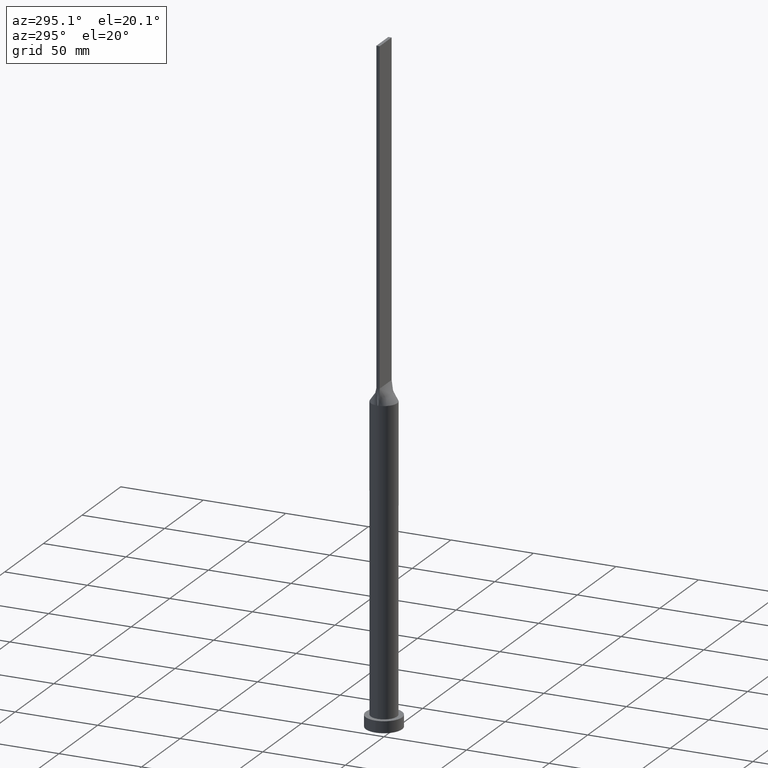
[diagram: clean part render]
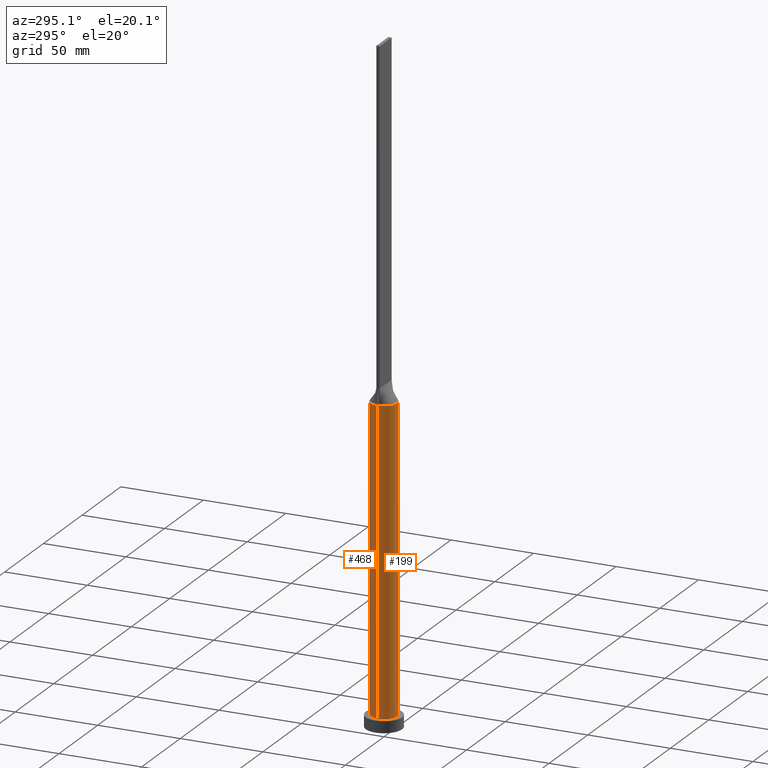
[diagram: same view with one multi-face feature highlighted, each face labeled with its STEP entity id]
A machine part, auxiliary view. The highlighted faces form ONE feature: a constant-radius fillet chain: 2 tangent blend faces with common blend radius 8 mm. The faces share edges in the B-rep.
Their STEP definitions:
[1] entity #468 (Cylinder):
#15 = VERTEX_POINT ( 'NONE', #75 ) ;
#17 = VERTEX_POINT ( 'NONE', #335 ) ;
#19 = VERTEX_POINT ( 'NONE', #417 ) ;
#37 = CARTESIAN_POINT ( 'NONE',  ( -0.5861720261543129640, 7.999999999999998224, 189.9999999999999432 ) ) ;
#38 = CYLINDRICAL_SURFACE ( 'NONE', #341, 8.000000000000000000 ) ;
#39 = DIRECTION ( 'NONE',  ( 0.000000000000000000, 0.000000000000000000, 1.000000000000000000 ) ) ;
#40 = CARTESIAN_POINT ( 'NONE',  ( 6.994548530637815453, 3.908833842696238570, 189.9999999999999716 ) ) ;
#75 = CARTESIAN_POINT ( 'NONE',  ( 8.000000000000000000, 9.797174393178825657E-16, 7.000000000000000000 ) ) ;
#87 = CARTESIAN_POINT ( 'NONE',  ( 7.849610172922079521, 1.679519592204998801, 190.0000000000000284 ) ) ;
#90 = CARTESIAN_POINT ( 'NONE',  ( -7.999864793045825984, 2.648518981350782698E-14, 190.0000000000000284 ) ) ;
#136 = CARTESIAN_POINT ( 'NONE',  ( 2.847317194822259534, 7.497028652483948008, 189.9999999999999716 ) ) ;
#139 = CARTESIAN_POINT ( 'NONE',  ( -6.226863775955933100, 5.046530946333157353, 190.0000000000000284 ) ) ;
#144 = CARTESIAN_POINT ( 'NONE',  ( -2.847317194822260422, 7.497028652483947120, 190.0000000000000284 ) ) ;
#160 = ORIENTED_EDGE ( 'NONE', *, *, #248, .F. ) ;
#189 = CARTESIAN_POINT ( 'NONE',  ( -3.862537548001455878, 7.028047916340264045, 190.0000000000000284 ) ) ;
#193 = VERTEX_POINT ( 'NONE', #235 ) ;
#194 = CARTESIAN_POINT ( 'NONE',  ( 6.226863775955932212, 5.046530946333158241, 190.0000000000000853 ) ) ;
#200 = CARTESIAN_POINT ( 'NONE',  ( 5.562660223239392465, 5.770452176164421410, 190.0000000000000284 ) ) ;
#204 = ORIENTED_EDGE ( 'NONE', *, *, #244, .F. ) ;
#218 = VERTEX_POINT ( 'NONE', #90 ) ;
#224 = EDGE_LOOP ( 'NONE', ( #463, #553, #564, #265, #204, #160 ) ) ;
#235 = CARTESIAN_POINT ( 'NONE',  ( -8.000000000000000000, 0.000000000000000000, 7.000000000000000000 ) ) ;
#237 = VECTOR ( 'NONE', #491, 1000.000000000000000 ) ;
#243 = CARTESIAN_POINT ( 'NONE',  ( 1.172177046651856624, 7.934824862069278950, 190.0000000000000284 ) ) ;
#244 = EDGE_CURVE ( 'NONE', #536, #218, #323, .T. ) ;
#246 = CARTESIAN_POINT ( 'NONE',  ( -7.849610172922081297, 1.679519592204999023, 189.9999999999999716 ) ) ;
#248 = EDGE_CURVE ( 'NONE', #19, #536, #567, .T. ) ;
#265 = ORIENTED_EDGE ( 'NONE', *, *, #390, .F. ) ;
#268 = DIRECTION ( 'NONE',  ( 1.000000000000000000, 0.000000000000000000, 0.000000000000000000 ) ) ;
#281 = CIRCLE ( 'NONE', #624, 8.000000000000000000 ) ;
#283 = LINE ( 'NONE', #470, #293 ) ;
#284 = CARTESIAN_POINT ( 'NONE',  ( -7.934264564332944580, 1.023776086464161406, 190.0000000000000000 ) ) ;
#292 = CARTESIAN_POINT ( 'NONE',  ( -5.562660223239390689, 5.770452176164420521, 190.0000000000000568 ) ) ;
#293 = VECTOR ( 'NONE', #331, 1000.000000000000000 ) ;
#296 = CARTESIAN_POINT ( 'NONE',  ( 6.511821874825409751, 4.668925682402791821, 190.0000000000000284 ) ) ;
#298 = CARTESIAN_POINT ( 'NONE',  ( -1.172177046651856402, 7.934824862069282503, 190.0000000000000568 ) ) ;
#301 = DIRECTION ( 'NONE',  ( -0.000000000000000000, -0.000000000000000000, -1.000000000000000000 ) ) ;
#302 = DIRECTION ( 'NONE',  ( 1.000000000000000000, 0.000000000000000000, 0.000000000000000000 ) ) ;
#314 = AXIS2_PLACEMENT_3D ( 'NONE', #632, #39, #302 ) ;
#323 = CIRCLE ( 'NONE', #314, 8.000000000000000000 ) ;
#331 = DIRECTION ( 'NONE',  ( -0.000000000000000000, -0.000000000000000000, -1.000000000000000000 ) ) ;
#335 = CARTESIAN_POINT ( 'NONE',  ( 7.999864793045824207, 2.000157186781041891E-15, 190.0000000000000000 ) ) ;
#337 = CARTESIAN_POINT ( 'NONE',  ( -4.333237558274722900, 6.745559271922134670, 190.0000000000000000 ) ) ;
#338 = CARTESIAN_POINT ( 'NONE',  ( 2.302877821226935406, 7.683241396761612663, 190.0000000000000284 ) ) ;
#341 = AXIS2_PLACEMENT_3D ( 'NONE', #641, #301, #394 ) ;
#342 = CARTESIAN_POINT ( 'NONE',  ( 7.934252830235720033, 1.023774570959714802, 190.0000000000000000 ) ) ;
#363 = LINE ( 'NONE', #442, #237 ) ;
#383 = CARTESIAN_POINT ( 'NONE',  ( 4.333237558274722900, 6.745559271922132893, 190.0000000000000284 ) ) ;
#390 = EDGE_CURVE ( 'NONE', #218, #193, #363, .T. ) ;
#393 = CARTESIAN_POINT ( 'NONE',  ( 5.183259239191615464, 6.116644610143058713, 190.0000000000000284 ) ) ;
#394 = DIRECTION ( 'NONE',  ( -1.000000000000000000, 0.000000000000000000, 0.000000000000000000 ) ) ;
#417 = CARTESIAN_POINT ( 'NONE',  ( 7.934252830235720033, 1.023774570959714802, 190.0000000000000000 ) ) ;
#420 = CARTESIAN_POINT ( 'NONE',  ( 0.000000000000000000, 0.000000000000000000, 190.0000000000000000 ) ) ;
#434 = CARTESIAN_POINT ( 'NONE',  ( -6.994548530637814565, 3.908833842696238570, 189.9999999999999716 ) ) ;
#439 = CARTESIAN_POINT ( 'NONE',  ( -7.934264564332944580, 1.023776086464161406, 190.0000000000000000 ) ) ;
#441 = CARTESIAN_POINT ( 'NONE',  ( 0.000000000000000000, 0.000000000000000000, 7.000000000000000000 ) ) ;
#442 = CARTESIAN_POINT ( 'NONE',  ( -8.000000000000000000, 0.000000000000000000, 190.0000000000000000 ) ) ;
#444 = FACE_OUTER_BOUND ( 'NONE', #224, .T. ) ;
#450 = EDGE_CURVE ( 'NONE', #15, #193, #524, .T. ) ;
#463 = ORIENTED_EDGE ( 'NONE', *, *, #570, .F. ) ;
#468 = ADVANCED_FACE ( 'NONE', ( #444 ), #38, .T. ) ;
#470 = CARTESIAN_POINT ( 'NONE',  ( 8.000000000000000000, 9.797174393178825657E-16, 190.0000000000000000 ) ) ;
#479 = CARTESIAN_POINT ( 'NONE',  ( -7.675166908885236339, 2.399868494543667907, 189.9999999999999432 ) ) ;
#481 = CARTESIAN_POINT ( 'NONE',  ( 7.192469010134847629, 3.526369025759696907, 189.9999999999999716 ) ) ;
#483 = CARTESIAN_POINT ( 'NONE',  ( -6.511821874825407974, 4.668925682402791821, 190.0000000000000284 ) ) ;
#491 = DIRECTION ( 'NONE',  ( -0.000000000000000000, -0.000000000000000000, -1.000000000000000000 ) ) ;
#508 = DIRECTION ( 'NONE',  ( 0.000000000000000000, 0.000000000000000000, 1.000000000000000000 ) ) ;
#521 = CARTESIAN_POINT ( 'NONE',  ( -7.192469010134845853, 3.526369025759696019, 189.9999999999999432 ) ) ;
#523 = CARTESIAN_POINT ( 'NONE',  ( -2.302877821226935851, 7.683241396761610886, 189.9999999999999716 ) ) ;
#524 = CIRCLE ( 'NONE', #611, 8.000000000000000000 ) ;
#529 = DIRECTION ( 'NONE',  ( 1.000000000000000000, 0.000000000000000000, 0.000000000000000000 ) ) ;
#536 = VERTEX_POINT ( 'NONE', #284 ) ;
#553 = ORIENTED_EDGE ( 'NONE', *, *, #597, .T. ) ;
#564 = ORIENTED_EDGE ( 'NONE', *, *, #450, .T. ) ;
#567 = B_SPLINE_CURVE_WITH_KNOTS ( 'NONE', 3,
 ( #342, #87, #621, #481, #40, #296, #194, #200, #393, #383, #577, #136, #338, #243, #580, #37, #298, #523, #144, #189, #337, #581, #292, #139, #483, #434, #521, #479, #246, #439 ),
 .UNSPECIFIED., .F., .F.,
 ( 4, 2, 2, 2, 2, 2, 2, 2, 2, 2, 2, 2, 2, 2, 4 ),
 ( 0.000000000000000000, 0.1250000000000000000, 0.1875000000000000000, 0.2500000000000000000, 0.3125000000000000000, 0.3750000000000000000, 0.4375000000000000000, 0.5000000000000000000, 0.5625000000000000000, 0.6250000000000000000, 0.6875000000000000000, 0.7500000000000000000, 0.8125000000000000000, 0.8750000000000000000, 1.000000000000000000 ),
 .UNSPECIFIED. ) ;
#570 = EDGE_CURVE ( 'NONE', #17, #19, #281, .T. ) ;
#577 = CARTESIAN_POINT ( 'NONE',  ( 3.862537548001455878, 7.028047916340264933, 190.0000000000000000 ) ) ;
#580 = CARTESIAN_POINT ( 'NONE',  ( 0.5861720261543130750, 7.999999999999998224, 190.0000000000000000 ) ) ;
#581 = CARTESIAN_POINT ( 'NONE',  ( -5.183259239191613688, 6.116644610143057825, 189.9999999999999716 ) ) ;
#597 = EDGE_CURVE ( 'NONE', #17, #15, #283, .T. ) ;
#611 = AXIS2_PLACEMENT_3D ( 'NONE', #441, #631, #529 ) ;
#621 = CARTESIAN_POINT ( 'NONE',  ( 7.675166908885234562, 2.399868494543665243, 189.9999999999998863 ) ) ;
#624 = AXIS2_PLACEMENT_3D ( 'NONE', #420, #508, #268 ) ;
#631 = DIRECTION ( 'NONE',  ( 0.000000000000000000, 0.000000000000000000, 1.000000000000000000 ) ) ;
#632 = CARTESIAN_POINT ( 'NONE',  ( 0.000000000000000000, 0.000000000000000000, 190.0000000000000000 ) ) ;
#641 = CARTESIAN_POINT ( 'NONE',  ( 0.000000000000000000, 0.000000000000000000, 190.0000000000000000 ) ) ;
[2] entity #199 (Cylinder):
#15 = VERTEX_POINT ( 'NONE', #75 ) ;
#17 = VERTEX_POINT ( 'NONE', #335 ) ;
#49 = ORIENTED_EDGE ( 'NONE', *, *, #378, .F. ) ;
#51 = DIRECTION ( 'NONE',  ( 0.000000000000000000, 0.000000000000000000, 1.000000000000000000 ) ) ;
#59 = ORIENTED_EDGE ( 'NONE', *, *, #277, .F. ) ;
#75 = CARTESIAN_POINT ( 'NONE',  ( 8.000000000000000000, 9.797174393178825657E-16, 7.000000000000000000 ) ) ;
#82 = EDGE_CURVE ( 'NONE', #218, #487, #633, .T. ) ;
#88 = CARTESIAN_POINT ( 'NONE',  ( 7.934268799922667981, -1.023776637617846319, 190.0000000000000000 ) ) ;
#90 = CARTESIAN_POINT ( 'NONE',  ( -7.999864793045825984, 2.648518981350782698E-14, 190.0000000000000284 ) ) ;
#145 = EDGE_LOOP ( 'NONE', ( #558, #49, #59, #176, #416, #593 ) ) ;
#176 = ORIENTED_EDGE ( 'NONE', *, *, #82, .F. ) ;
#191 = CARTESIAN_POINT ( 'NONE',  ( 0.000000000000000000, 0.000000000000000000, 190.0000000000000000 ) ) ;
#193 = VERTEX_POINT ( 'NONE', #235 ) ;
#199 = ADVANCED_FACE ( 'NONE', ( #288 ), #625, .T. ) ;
#205 = CARTESIAN_POINT ( 'NONE',  ( -7.934257051336532029, -1.023775119746132001, 190.0000000000000000 ) ) ;
#218 = VERTEX_POINT ( 'NONE', #90 ) ;
#230 = CARTESIAN_POINT ( 'NONE',  ( 0.000000000000000000, 0.000000000000000000, 190.0000000000000000 ) ) ;
#235 = CARTESIAN_POINT ( 'NONE',  ( -8.000000000000000000, 0.000000000000000000, 7.000000000000000000 ) ) ;
#237 = VECTOR ( 'NONE', #491, 1000.000000000000000 ) ;
#252 = CARTESIAN_POINT ( 'NONE',  ( 0.000000000000000000, 0.000000000000000000, 190.0000000000000000 ) ) ;
#277 = EDGE_CURVE ( 'NONE', #487, #422, #350, .T. ) ;
#279 = AXIS2_PLACEMENT_3D ( 'NONE', #230, #615, #367 ) ;
#283 = LINE ( 'NONE', #470, #293 ) ;
#288 = FACE_OUTER_BOUND ( 'NONE', #145, .T. ) ;
#291 = CIRCLE ( 'NONE', #371, 8.000000000000000000 ) ;
#293 = VECTOR ( 'NONE', #331, 1000.000000000000000 ) ;
#317 = CARTESIAN_POINT ( 'NONE',  ( 0.000000000000000000, 0.000000000000000000, 190.0000000000000000 ) ) ;
#331 = DIRECTION ( 'NONE',  ( -0.000000000000000000, -0.000000000000000000, -1.000000000000000000 ) ) ;
#335 = CARTESIAN_POINT ( 'NONE',  ( 7.999864793045824207, 2.000157186781041891E-15, 190.0000000000000000 ) ) ;
#340 = AXIS2_PLACEMENT_3D ( 'NONE', #191, #534, #382 ) ;
#350 = CIRCLE ( 'NONE', #507, 8.000000000000000000 ) ;
#363 = LINE ( 'NONE', #442, #237 ) ;
#367 = DIRECTION ( 'NONE',  ( 1.000000000000000000, 0.000000000000000000, 0.000000000000000000 ) ) ;
#371 = AXIS2_PLACEMENT_3D ( 'NONE', #252, #599, #590 ) ;
#378 = EDGE_CURVE ( 'NONE', #422, #17, #291, .T. ) ;
#382 = DIRECTION ( 'NONE',  ( -1.000000000000000000, 0.000000000000000000, 0.000000000000000000 ) ) ;
#390 = EDGE_CURVE ( 'NONE', #218, #193, #363, .T. ) ;
#396 = EDGE_CURVE ( 'NONE', #193, #15, #419, .T. ) ;
#402 = DIRECTION ( 'NONE',  ( 1.000000000000000000, 0.000000000000000000, 0.000000000000000000 ) ) ;
#416 = ORIENTED_EDGE ( 'NONE', *, *, #390, .T. ) ;
#419 = CIRCLE ( 'NONE', #572, 8.000000000000000000 ) ;
#422 = VERTEX_POINT ( 'NONE', #88 ) ;
#442 = CARTESIAN_POINT ( 'NONE',  ( -8.000000000000000000, 0.000000000000000000, 190.0000000000000000 ) ) ;
#449 = CARTESIAN_POINT ( 'NONE',  ( 0.000000000000000000, 0.000000000000000000, 7.000000000000000000 ) ) ;
#470 = CARTESIAN_POINT ( 'NONE',  ( 8.000000000000000000, 9.797174393178825657E-16, 190.0000000000000000 ) ) ;
#487 = VERTEX_POINT ( 'NONE', #205 ) ;
#491 = DIRECTION ( 'NONE',  ( -0.000000000000000000, -0.000000000000000000, -1.000000000000000000 ) ) ;
#494 = DIRECTION ( 'NONE',  ( 1.000000000000000000, 0.000000000000000000, 0.000000000000000000 ) ) ;
#507 = AXIS2_PLACEMENT_3D ( 'NONE', #317, #51, #494 ) ;
#534 = DIRECTION ( 'NONE',  ( -0.000000000000000000, -0.000000000000000000, -1.000000000000000000 ) ) ;
#549 = DIRECTION ( 'NONE',  ( 0.000000000000000000, 0.000000000000000000, 1.000000000000000000 ) ) ;
#558 = ORIENTED_EDGE ( 'NONE', *, *, #597, .F. ) ;
#572 = AXIS2_PLACEMENT_3D ( 'NONE', #449, #549, #402 ) ;
#590 = DIRECTION ( 'NONE',  ( 1.000000000000000000, 9.769962616701377556E-15, 0.000000000000000000 ) ) ;
#593 = ORIENTED_EDGE ( 'NONE', *, *, #396, .T. ) ;
#597 = EDGE_CURVE ( 'NONE', #17, #15, #283, .T. ) ;
#599 = DIRECTION ( 'NONE',  ( 0.000000000000000000, 0.000000000000000000, 1.000000000000000000 ) ) ;
#615 = DIRECTION ( 'NONE',  ( 0.000000000000000000, 0.000000000000000000, 1.000000000000000000 ) ) ;
#625 = CYLINDRICAL_SURFACE ( 'NONE', #340, 8.000000000000000000 ) ;
#633 = CIRCLE ( 'NONE', #279, 8.000000000000000000 ) ;